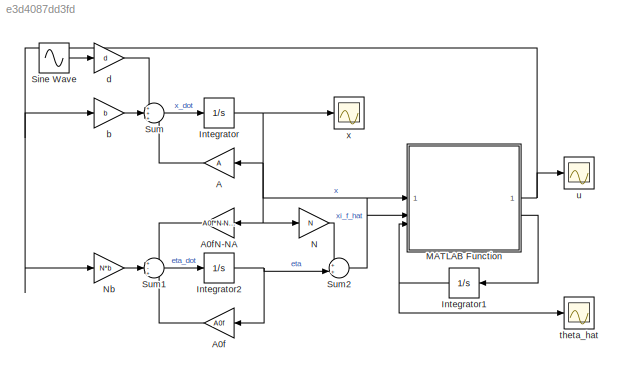
MODEL slx_e3d4087dd3fd
KIND model
CONFIG AbsTol = auto
CONFIG EnableMultiTasking = off
CONFIG FixedStep = auto
CONFIG InitFcn = A=[1 0; 1 1];\nb=[3; 5];\nd=b;\n\nA0f=[0 1; -16 -8];\nb0f=[0; 1];\nN=b0f/d;\n\nAd=[0 1; -10.24 -6.4];\nH=[1 0];\nM=lyap(A,-Ad,-b*H);\nK=H*inv(M);\nAm=A-b*K;\nQ=eye(2);\nP=lyap(Am',Q);
CONFIG MaxStep = auto
CONFIG MinStep = auto
CONFIG RelTol = 1e-3
CONFIG SampleTimeConstraint = Unconstrained
CONFIG SolverName = VariableStepAuto
CONFIG StartTime = 0.0
CONFIG StopTime = 100
BLOCK [Gain] A
  Gain = A
  Multiplication = Matrix(K*u)
  NameLocation = top
BLOCK [Gain] A0f
  Gain = A0f
  Multiplication = Matrix(K*u)
  NameLocation = top
BLOCK [Gain] A0fN-NA
  Gain = A0f*N-N*A
  Multiplication = Matrix(K*u)
  NameLocation = top
BLOCK [Integrator] Integrator
  InitialCondition = [0; 0]
BLOCK [Integrator] Integrator1
  InitialCondition = [0; 0]
  NameLocation = top
BLOCK [Integrator] Integrator2
  InitialCondition = [0; 0]
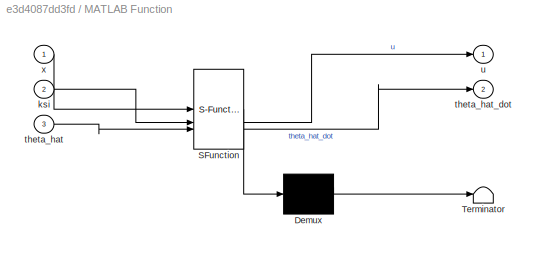
BLOCK [SubSystem] MATLAB Function
  ErrorFcn = Stateflow.Translate.translate
  PermitHierarchicalResolution = ExplicitOnly
  SFBlockType = MATLAB Function
  TreatAsAtomicUnit = on
BLOCK [Demux] MATLAB Function/ Demux 
  Outputs = 1
BLOCK [S-Function] MATLAB Function/ SFunction 
  EnableBusSupport = on
  FunctionName = sf_sfun
  Parameters = K,P,b
  PortCounts = [3 3]
  SFcnIsStateOwnerBlock = off
  SFunctionDeploymentMode = off
  Tag = Stateflow S-Function 1
BLOCK [Terminator] MATLAB Function/ Terminator 
BLOCK [Inport] MATLAB Function/ksi
  Port = 2
BLOCK [Inport] MATLAB Function/theta_hat
  Port = 3
BLOCK [Outport] MATLAB Function/theta_hat_dot
  Port = 2
BLOCK [Outport] MATLAB Function/u
BLOCK [Inport] MATLAB Function/x
BLOCK [Gain] N
  Gain = N
  Multiplication = Matrix(K*u)
BLOCK [Gain] Nb
  Gain = N*b
  Multiplication = Matrix(K*u)
BLOCK [Sin] Sine Wave
  Amplitude = 20
  SampleTime = 0
BLOCK [Sum] Sum
  Inputs = +++
BLOCK [Sum] Sum1
  Inputs = +-+
BLOCK [Sum] Sum2
  Inputs = ++|
BLOCK [Gain] b
  Gain = b
  Multiplication = Matrix(K*u)
BLOCK [Gain] d
  Gain = d
  Multiplication = Matrix(K*u)
BLOCK [Scope] theta_hat
  Floating = off
  NumInputPorts = 1
  ScopeSpecificationString = Simulink.scopes.TimeScopeBlockCfg('CurrentConfiguration', extmgr.ConfigurationSet(extmgr.Configuration('Core','General UI',true),extmgr.Configuration('Core','Source UI',true),extmgr.Configuration('Sources','WiredSimulink',true,'DataLoggingVariableName','ScopeData6'),extmgr.Configuration('Visuals','Time Domain',true,'SerializedDisplays',{struct('MinYLimReal','-204.65627','MaxYLimReal','91.87074','Y...<+1518ch>
BLOCK [Scope] u
  Floating = off
  NumInputPorts = 1
  ScopeSpecificationString = Simulink.scopes.TimeScopeBlockCfg('CurrentConfiguration', extmgr.ConfigurationSet(extmgr.Configuration('Core','General UI',true,'FigureColor',[1 1 1]),extmgr.Configuration('Core','Source UI',true),extmgr.Configuration('Sources','WiredSimulink',true,'DataLoggingVariableName','ScopeData3'),extmgr.Configuration('Visuals','Time Domain',true,'SerializedDisplays',{struct('MinYLimReal','-25.14894','MaxYL...<+1587ch>
BLOCK [Scope] x
  Floating = off
  NameLocation = right
  NumInputPorts = 1
  ScopeSpecificationString = Simulink.scopes.TimeScopeBlockCfg('CurrentConfiguration', extmgr.ConfigurationSet(extmgr.Configuration('Core','General UI',true,'FigureColor',[1 1 1]),extmgr.Configuration('Core','Source UI',true),extmgr.Configuration('Sources','WiredSimulink',true,'DataLoggingVariableName','ScopeData1'),extmgr.Configuration('Visuals','Time Domain',true,'SerializedDisplays',{struct('MinYLimReal','-1.55636','MaxYLi...<+1770ch>
LINE A0f:1 -> Sum1:3
LINE A0fN-NA:1 -> Sum1:1
LINE A:1 -> Sum:3
NET Integrator1:1 -> MATLAB Function:3, theta_hat:1
NET Integrator2:1 -> A0f:1, Sum2:2
NET Integrator:1 -> A0fN-NA:1, A:1, MATLAB Function:1, N:1, x:1
NET MATLAB Function:1 -> Nb:1, b:1, u:1
LINE MATLAB Function:2 -> Integrator1:1
LINE N:1 -> Sum2:1
LINE Nb:1 -> Sum1:2
LINE Sine Wave:1 -> d:1
LINE Sum1:1 -> Integrator2:1
LINE Sum2:1 -> MATLAB Function:2
LINE Sum:1 -> Integrator:1
LINE b:1 -> Sum:2
LINE d:1 -> Sum:1
note: NET lines group one-source signal fan-out (src -> all destinations, sorted); 1:1 wires keep LINE
CHART MATLAB Function states=1 transitions=1
  STATE_LABEL 'eML_blk_kernel()'
  STATE_LABEL "SCRIPT:\nfunction [u, theta_hat_dot] = fcn(x, ksi, theta_hat, b, P, K)\ngamma=100;\nu=-K*x-theta_hat'*ksi;\ntheta_hat_dot=gamma*ksi*b'*P*x;\n"
CHART  states=0 transitions=0
